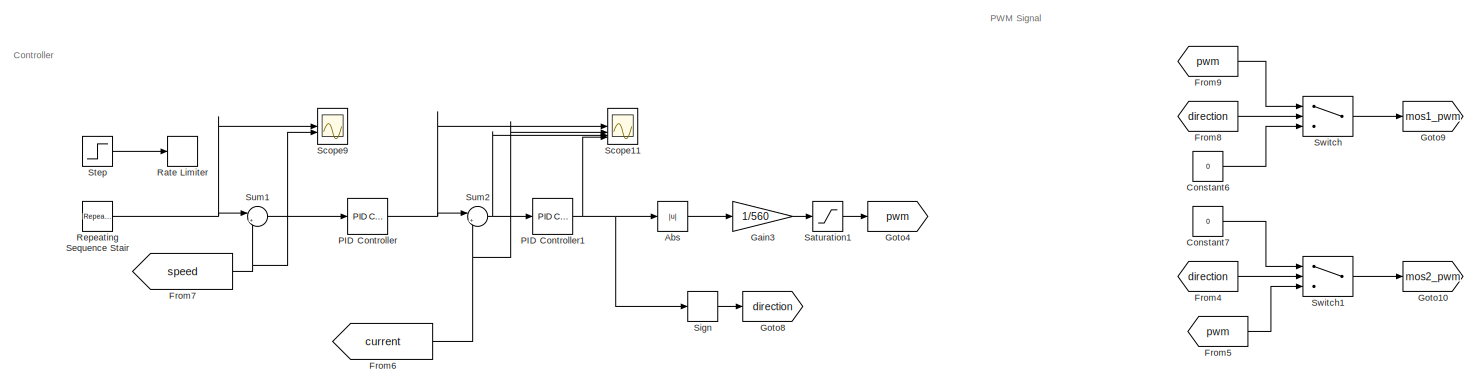
[diagram: root canvas - part 1/7, top center region]
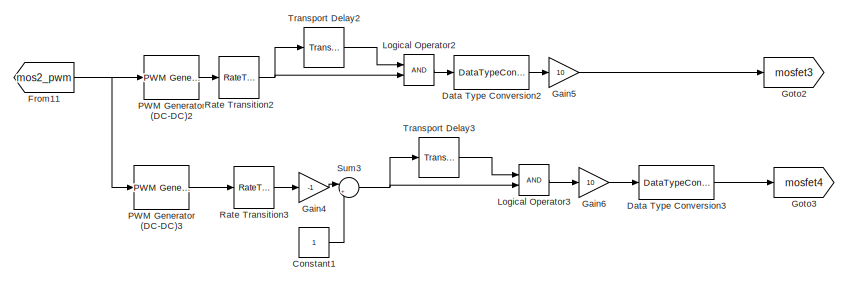
[diagram: root canvas - part 2/7, top right region]
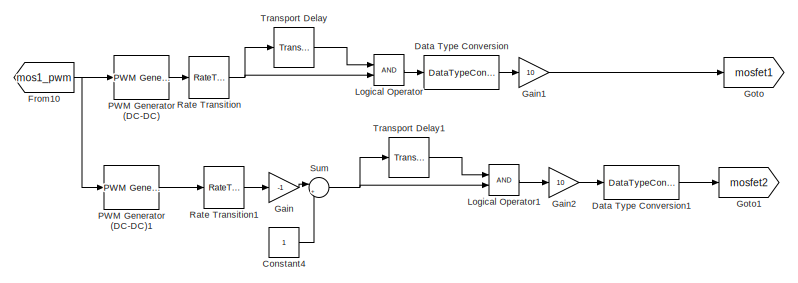
[diagram: root canvas - part 3/7, top right region]
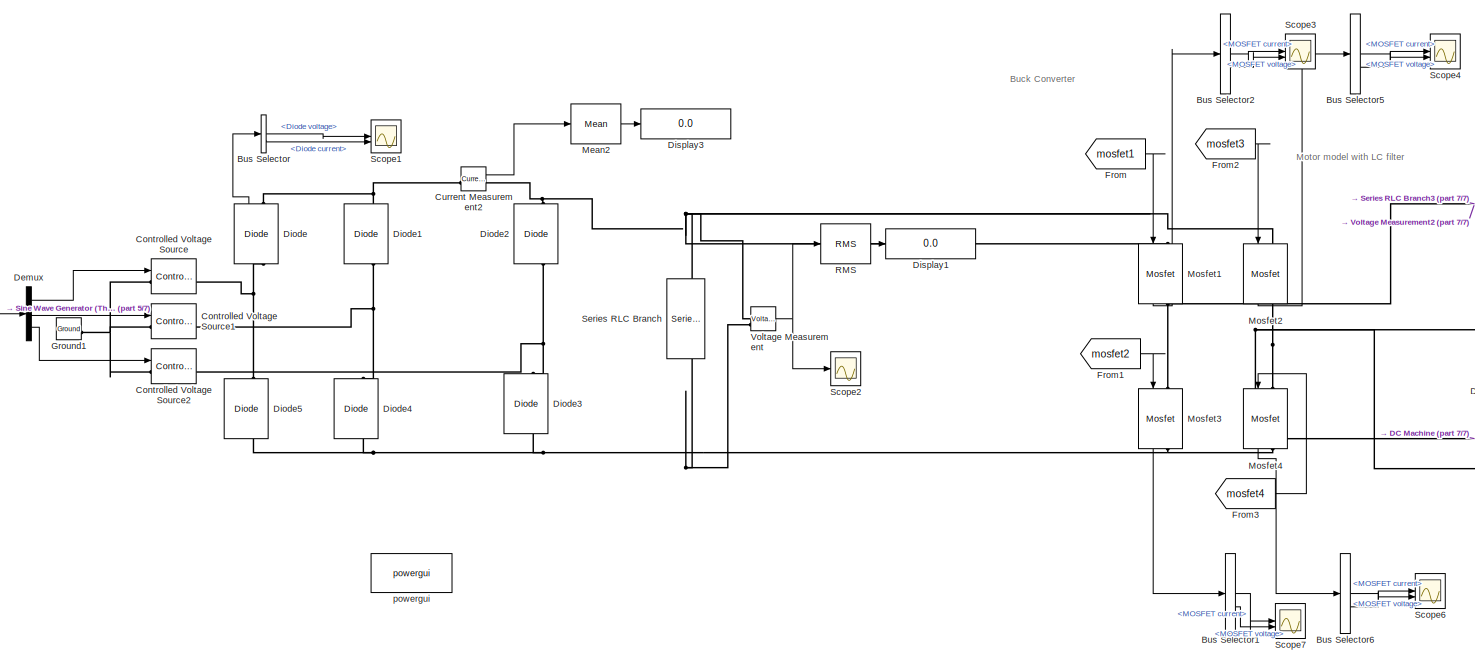
[diagram: root canvas - part 4/7, bottom center region]
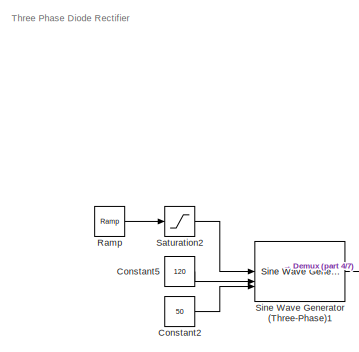
[diagram: root canvas - part 5/7, middle left region]
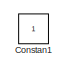
[diagram: root canvas - part 6/7, middle left region]
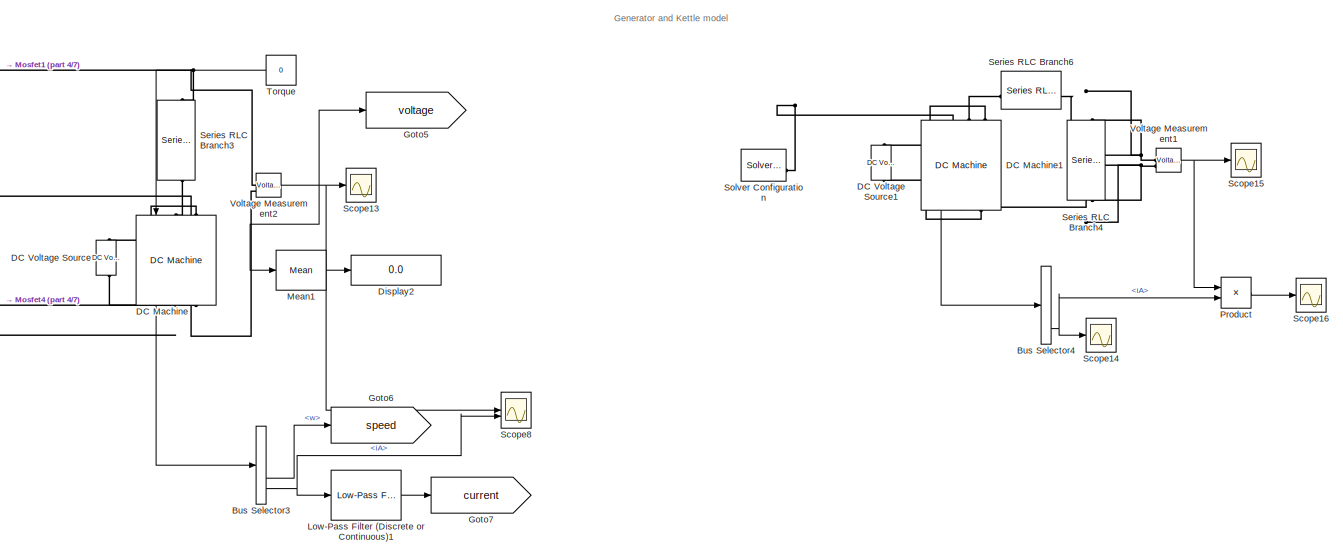
[diagram: root canvas - part 7/7, bottom right region]
MODEL slx_ae579819a69c
KIND model
CONFIG AbsTol = auto
CONFIG EnableMultiTasking = off
CONFIG FixedStep = 1e-6
CONFIG MaxStep = auto
CONFIG MinStep = auto
CONFIG RelTol = 1e-3
CONFIG SampleTimeConstraint = Unconstrained
CONFIG SolverName = VariableStepAuto
CONFIG StartTime = 0
CONFIG StopTime = 2.5*4
BLOCK [Abs] Abs
  SaturateOnIntegerOverflow = off
BLOCK [BusSelector] Bus Selector
  OutputSignals = Diode voltage,Diode current
BLOCK [BusSelector] Bus Selector1
  OutputSignals = MOSFET current,MOSFET voltage
BLOCK [BusSelector] Bus Selector2
  OutputSignals = MOSFET current,MOSFET voltage
BLOCK [BusSelector] Bus Selector3
  OutputSignals = Te,w,iF,iA
BLOCK [BusSelector] Bus Selector4
  Commented = on
  OutputSignals = Te,w,iF,iA
BLOCK [BusSelector] Bus Selector5
  OutputSignals = MOSFET current,MOSFET voltage
BLOCK [BusSelector] Bus Selector6
  OutputSignals = MOSFET current,MOSFET voltage
BLOCK [Constant] Constan1
  IOType = siggen
BLOCK [Constant] Constant1
BLOCK [Constant] Constant2
  Value = 50
BLOCK [Constant] Constant4
BLOCK [Constant] Constant5
  Value = 120
BLOCK [Constant] Constant6
  Value = 0
BLOCK [Constant] Constant7
  Value = 0
BLOCK [Reference] Controlled Voltage Source  REF=spsControlledVoltageSourceLib/Controlled Voltage Source
  LibrarySourceBlock = sps_lib/Sources/Controlled Voltage Source
  NameLocation = left
  SourceBlock = spsControlledVoltageSourceLib/Controlled Voltage Source
  SourceType = Controlled Voltage Source
BLOCK [Reference] Controlled Voltage Source1  REF=spsControlledVoltageSourceLib/Controlled Voltage Source
  LibrarySourceBlock = sps_lib/Sources/Controlled Voltage Source
  NameLocation = left
  SourceBlock = spsControlledVoltageSourceLib/Controlled Voltage Source
  SourceType = Controlled Voltage Source
BLOCK [Reference] Controlled Voltage Source2  REF=spsControlledVoltageSourceLib/Controlled Voltage Source
  LibrarySourceBlock = sps_lib/Sources/Controlled Voltage Source
  NameLocation = left
  SourceBlock = spsControlledVoltageSourceLib/Controlled Voltage Source
  SourceType = Controlled Voltage Source
BLOCK [Reference] Current Measurement2  REF=spsCurrentMeasurementLib/Current Measurement
  LibrarySourceBlock = sps_lib/Sensors and Measurements/Current Measurement
  SourceBlock = spsCurrentMeasurementLib/Current Measurement
  SourceType = Current Measurement
  UserDataPersistent = on
BLOCK [Reference] DC Machine  REF=spsDCMachineLib/DC Machine
  LibrarySourceBlock = sps_lib/Electrical Machines/DC Machine
  NameLocation = left
  SourceBlock = spsDCMachineLib/DC Machine
  SourceType = DC machine
BLOCK [Reference] DC Machine1  REF=spsDCMachineLib/DC Machine
  Commented = on
  LibrarySourceBlock = sps_lib/Electrical Machines/DC Machine
  NameLocation = left
  SourceBlock = spsDCMachineLib/DC Machine
  SourceType = DC machine
BLOCK [Reference] DC Voltage Source  REF=spsDCVoltageSourceLib/DC Voltage Source
  LibrarySourceBlock = sps_lib/Sources/DC Voltage Source
  SourceBlock = spsDCVoltageSourceLib/DC Voltage Source
  SourceType = DC Voltage Source
BLOCK [Reference] DC Voltage Source1  REF=spsDCVoltageSourceLib/DC Voltage Source
  Commented = on
  LibrarySourceBlock = sps_lib/Sources/DC Voltage Source
  SourceBlock = spsDCVoltageSourceLib/DC Voltage Source
  SourceType = DC Voltage Source
BLOCK [DataTypeConversion] Data Type Conversion
  OutDataTypeStr = double
  RndMeth = Floor
  SaturateOnIntegerOverflow = off
BLOCK [DataTypeConversion] Data Type Conversion1
  OutDataTypeStr = double
  RndMeth = Floor
  SaturateOnIntegerOverflow = off
BLOCK [DataTypeConversion] Data Type Conversion2
  OutDataTypeStr = double
  RndMeth = Floor
  SaturateOnIntegerOverflow = off
BLOCK [DataTypeConversion] Data Type Conversion3
  OutDataTypeStr = double
  RndMeth = Floor
  SaturateOnIntegerOverflow = off
BLOCK [Demux] Demux
  Outputs = 3
BLOCK [Reference] Diode  REF=spsDiodeLib/Diode
  LibrarySourceBlock = sps_lib/Power Electronics/Diode
  NameLocation = right
  SourceBlock = spsDiodeLib/Diode
  SourceType = Diode
BLOCK [Reference] Diode1  REF=spsDiodeLib/Diode
  LibrarySourceBlock = sps_lib/Power Electronics/Diode
  NameLocation = right
  SourceBlock = spsDiodeLib/Diode
  SourceType = Diode
BLOCK [Reference] Diode2  REF=spsDiodeLib/Diode
  LibrarySourceBlock = sps_lib/Power Electronics/Diode
  NameLocation = right
  SourceBlock = spsDiodeLib/Diode
  SourceType = Diode
BLOCK [Reference] Diode3  REF=spsDiodeLib/Diode
  LibrarySourceBlock = sps_lib/Power Electronics/Diode
  NameLocation = right
  SourceBlock = spsDiodeLib/Diode
  SourceType = Diode
BLOCK [Reference] Diode4  REF=spsDiodeLib/Diode
  LibrarySourceBlock = sps_lib/Power Electronics/Diode
  NameLocation = right
  SourceBlock = spsDiodeLib/Diode
  SourceType = Diode
BLOCK [Reference] Diode5  REF=spsDiodeLib/Diode
  LibrarySourceBlock = sps_lib/Power Electronics/Diode
  NameLocation = right
  SourceBlock = spsDiodeLib/Diode
  SourceType = Diode
BLOCK [Display] Display1
  Decimation = 1
BLOCK [Display] Display2
  Decimation = 1
BLOCK [Display] Display3
  Decimation = 1
BLOCK [From] From
  GotoTag = mosfet1
BLOCK [From] From1
  GotoTag = mosfet2
BLOCK [From] From10
  GotoTag = mos1_pwm
BLOCK [From] From11
  GotoTag = mos2_pwm
BLOCK [From] From2
  GotoTag = mosfet3
BLOCK [From] From3
  GotoTag = mosfet4
BLOCK [From] From4
  GotoTag = direction
BLOCK [From] From5
  GotoTag = pwm
BLOCK [From] From6
  GotoTag = current
BLOCK [From] From7
  GotoTag = speed
BLOCK [From] From8
  GotoTag = direction
BLOCK [From] From9
  GotoTag = pwm
BLOCK [Gain] Gain
  Gain = -1
BLOCK [Gain] Gain1
  Gain = 10
BLOCK [Gain] Gain2
  Gain = 10
BLOCK [Gain] Gain3
  Gain = 1/560
BLOCK [Gain] Gain4
  Gain = -1
BLOCK [Gain] Gain5
  Gain = 10
BLOCK [Gain] Gain6
  Gain = 10
BLOCK [Goto] Goto
  GotoTag = mosfet1
BLOCK [Goto] Goto1
  GotoTag = mosfet2
BLOCK [Goto] Goto10
  GotoTag = mos2_pwm
BLOCK [Goto] Goto2
  GotoTag = mosfet3
BLOCK [Goto] Goto3
  GotoTag = mosfet4
BLOCK [Goto] Goto4
  GotoTag = pwm
BLOCK [Goto] Goto5
  GotoTag = voltage
BLOCK [Goto] Goto6
  GotoTag = speed
BLOCK [Goto] Goto7
  GotoTag = current
BLOCK [Goto] Goto8
  GotoTag = direction
BLOCK [Goto] Goto9
  GotoTag = mos1_pwm
BLOCK [Reference] Ground1  REF=spsGroundLib/Ground
  LibrarySourceBlock = sps_lib/Utilities/Ground
  SourceBlock = spsGroundLib/Ground
  SourceType = Ground
BLOCK [Logic] Logical Operator
  AllPortsSameDT = off
  OutDataTypeStr = boolean
BLOCK [Logic] Logical Operator1
  AllPortsSameDT = off
  OutDataTypeStr = boolean
BLOCK [Logic] Logical Operator2
  AllPortsSameDT = off
  OutDataTypeStr = boolean
BLOCK [Logic] Logical Operator3
  AllPortsSameDT = off
  OutDataTypeStr = boolean
BLOCK [Reference] Low-Pass Filter (Discrete or Continuous)1  REF=eeGeneralControl/Low-Pass Filter
(Discrete or Continuous)
  LibrarySourceBlock = ee_sl_lib/General Control/Low-Pass Filter\n(Discrete or Continuous)
  SourceBlock = eeGeneralControl/Low-Pass Filter\n(Discrete or Continuous)
  SourceType = Low-Pass Filter (Discrete or Continuous)
BLOCK [Reference] Mean1  REF=spsMeanLib/Mean
  LibrarySourceBlock = sps_lib/Sensors and Measurements/Mean
  SourceBlock = spsMeanLib/Mean
  SourceType = Mean
BLOCK [Reference] Mean2  REF=spsMeanLib/Mean
  LibrarySourceBlock = sps_lib/Sensors and Measurements/Mean
  SourceBlock = spsMeanLib/Mean
  SourceType = Mean
BLOCK [Reference] Mosfet1  REF=spsMosfetLib/Mosfet
  LibrarySourceBlock = sps_lib/Power Electronics/Mosfet
  NameLocation = left
  SourceBlock = spsMosfetLib/Mosfet
  SourceType = Mosfet
BLOCK [Reference] Mosfet2  REF=spsMosfetLib/Mosfet
  LibrarySourceBlock = sps_lib/Power Electronics/Mosfet
  NameLocation = left
  SourceBlock = spsMosfetLib/Mosfet
  SourceType = Mosfet
BLOCK [Reference] Mosfet3  REF=spsMosfetLib/Mosfet
  LibrarySourceBlock = sps_lib/Power Electronics/Mosfet
  NameLocation = left
  SourceBlock = spsMosfetLib/Mosfet
  SourceType = Mosfet
BLOCK [Reference] Mosfet4  REF=spsMosfetLib/Mosfet
  LibrarySourceBlock = sps_lib/Power Electronics/Mosfet
  NameLocation = left
  SourceBlock = spsMosfetLib/Mosfet
  SourceType = Mosfet
BLOCK [Reference] PID Controller  REF=slpidlib/PID Controller
  LibrarySourceBlock = simulink/Continuous/PID Controller
  SourceBlock = slpidlib/PID Controller
  SourceType = PID 1dof
BLOCK [Reference] PID Controller1  REF=slpidlib/PID Controller
  LibrarySourceBlock = simulink/Continuous/PID Controller
  SourceBlock = slpidlib/PID Controller
  SourceType = PID 1dof
BLOCK [Reference] PWM Generator (DC-DC)  REF=spsPWMGeneratorDCDCLib/PWM Generator
(DC-DC)
  LibrarySourceBlock = sps_lib/Power Electronics/Power Electronics Control/PWM Generator\n(DC-DC)
  SourceBlock = spsPWMGeneratorDCDCLib/PWM Generator\n(DC-DC)
  SourceType = PWM Generator (DC-DC)
BLOCK [Reference] PWM Generator (DC-DC)1  REF=spsPWMGeneratorDCDCLib/PWM Generator
(DC-DC)
  LibrarySourceBlock = sps_lib/Power Electronics/Power Electronics Control/PWM Generator\n(DC-DC)
  SourceBlock = spsPWMGeneratorDCDCLib/PWM Generator\n(DC-DC)
  SourceType = PWM Generator (DC-DC)
BLOCK [Reference] PWM Generator (DC-DC)2  REF=spsPWMGeneratorDCDCLib/PWM Generator
(DC-DC)
  LibrarySourceBlock = sps_lib/Power Electronics/Power Electronics Control/PWM Generator\n(DC-DC)
  SourceBlock = spsPWMGeneratorDCDCLib/PWM Generator\n(DC-DC)
  SourceType = PWM Generator (DC-DC)
BLOCK [Reference] PWM Generator (DC-DC)3  REF=spsPWMGeneratorDCDCLib/PWM Generator
(DC-DC)
  LibrarySourceBlock = sps_lib/Power Electronics/Power Electronics Control/PWM Generator\n(DC-DC)
  SourceBlock = spsPWMGeneratorDCDCLib/PWM Generator\n(DC-DC)
  SourceType = PWM Generator (DC-DC)
BLOCK [Product] Product
  Commented = on
BLOCK [Reference] RMS  REF=spsRMSLib/RMS
  LibrarySourceBlock = sps_lib/Sensors and Measurements/RMS
  SourceBlock = spsRMSLib/RMS
  SourceType = RMS
BLOCK [Reference] Ramp  REF=simulink/Sources/Ramp
  SourceBlock = simulink/Sources/Ramp
  SourceType = Ramp
BLOCK [RateLimiter] Rate Limiter
  FallingSlewLimit = -150
  RisingSlewLimit = 150
  SampleTimeMode = inherited
BLOCK [RateTransition] Rate Transition
  OutPortSampleTime = 1e-6
BLOCK [RateTransition] Rate Transition1
  OutPortSampleTime = 1e-6
BLOCK [RateTransition] Rate Transition2
  OutPortSampleTime = 1e-6
BLOCK [RateTransition] Rate Transition3
  OutPortSampleTime = 1e-6
BLOCK [Reference] Repeating Sequence Stair  REF=simulink/Sources/Repeating
Sequence
Stair
  SourceBlock = simulink/Sources/Repeating\nSequence\nStair
  SourceType = Repeating Sequence Stair
BLOCK [Saturate] Saturation1
  LowerLimit = 0
  UpperLimit = 0.32
BLOCK [Saturate] Saturation2
  LowerLimit = 0
  UpperLimit = 230*sqrt(2)
BLOCK [Scope] Scope1
  Floating = off
  NumInputPorts = 2
  ScopeSpecificationString = Simulink.scopes.TimeScopeBlockCfg('CurrentConfiguration', extmgr.ConfigurationSet(extmgr.Configuration('Core','General UI',true,'FigureColor',[1 1 1]),extmgr.Configuration('Core','Source UI',true),extmgr.Configuration('Sources','WiredSimulink',true,'DataLoggingVariableName','ScopeData1'),extmgr.Configuration('Visuals','Time Domain',true,'SerializedDisplays',{struct('MinYLimReal','-632.84794','MaxY...<+2366ch>
BLOCK [Scope] Scope11
  Floating = off
  NumInputPorts = 4
  ScopeSpecificationString = Simulink.scopes.TimeScopeBlockCfg('CurrentConfiguration', extmgr.ConfigurationSet(extmgr.Configuration('Core','General UI',true,'FigureColor',[1 1 1]),extmgr.Configuration('Core','Source UI',true),extmgr.Configuration('Sources','WiredSimulink',true,'DataLoggingVariableName','ScopeData3'),extmgr.Configuration('Visuals','Time Domain',true,'SerializedDisplays',{struct('MinYLimReal','-25.00000','MaxYL...<+4080ch>
BLOCK [Scope] Scope13
  Floating = off
  NumInputPorts = 1
  ScopeSpecificationString = Simulink.scopes.TimeScopeBlockCfg('CurrentConfiguration', extmgr.ConfigurationSet(extmgr.Configuration('Core','General UI',true),extmgr.Configuration('Core','Source UI',true),extmgr.Configuration('Sources','WiredSimulink',true,'DataLoggingVariableName','ScopeData5'),extmgr.Configuration('Visuals','Time Domain',true,'SerializedDisplays',{struct('MinYLimReal','-13.71368','MaxYLimReal','123.25611','Y...<+1991ch>
BLOCK [Scope] Scope14
  Commented = on
  Floating = off
  NumInputPorts = 1
  ScopeSpecificationString = Simulink.scopes.TimeScopeBlockCfg('CurrentConfiguration', extmgr.ConfigurationSet(extmgr.Configuration('Core','General UI',true),extmgr.Configuration('Core','Source UI',true),extmgr.Configuration('Sources','WiredSimulink',true,'DataLoggingVariableName','ScopeData6'),extmgr.Configuration('Visuals','Time Domain',true,'SerializedDisplays',{struct('MinYLimReal','-1.11539','MaxYLimReal','0.12393','YLab...<+1965ch>
BLOCK [Scope] Scope15
  Commented = on
  Floating = off
  NumInputPorts = 1
  ScopeSpecificationString = Simulink.scopes.TimeScopeBlockCfg('CurrentConfiguration', extmgr.ConfigurationSet(extmgr.Configuration('Core','General UI',true),extmgr.Configuration('Core','Source UI',true),extmgr.Configuration('Sources','WiredSimulink',true,'DataLoggingVariableName','ScopeData7'),extmgr.Configuration('Visuals','Time Domain',true,'SerializedDisplays',{struct('MinYLimReal','-11.44021','MaxYLimReal','102.96188','Y...<+1991ch>
BLOCK [Scope] Scope16
  Commented = on
  Floating = off
  NumInputPorts = 1
  ScopeSpecificationString = Simulink.scopes.TimeScopeBlockCfg('CurrentConfiguration', extmgr.ConfigurationSet(extmgr.Configuration('Core','General UI',true),extmgr.Configuration('Core','Source UI',true),extmgr.Configuration('Sources','WiredSimulink',true,'DataLoggingVariableName','ScopeData8'),extmgr.Configuration('Visuals','Time Domain',true,'SerializedDisplays',{struct('MinYLimReal','-2132.90842','MaxYLimReal','236.98982',...<+1988ch>
BLOCK [Scope] Scope2
  Floating = off
  NumInputPorts = 1
  ScopeSpecificationString = Simulink.scopes.TimeScopeBlockCfg('CurrentConfiguration', extmgr.ConfigurationSet(extmgr.Configuration('Core','General UI',true,'FigureColor',[1 1 1]),extmgr.Configuration('Core','Source UI',true),extmgr.Configuration('Sources','WiredSimulink',true,'DataLoggingVariableName','ScopeData1'),extmgr.Configuration('Visuals','Time Domain',true,'SerializedDisplays',{struct('MinYLimReal','531.2603','MaxYLi...<+1771ch>
BLOCK [Scope] Scope3
  Floating = off
  NumInputPorts = 2
  ScopeSpecificationString = Simulink.scopes.TimeScopeBlockCfg('CurrentConfiguration', extmgr.ConfigurationSet(extmgr.Configuration('Core','General UI',true,'FigureColor',[1 1 1]),extmgr.Configuration('Core','Source UI',true),extmgr.Configuration('Sources','WiredSimulink',true,'DataLoggingVariableName','ScopeData1'),extmgr.Configuration('Visuals','Time Domain',true,'SerializedDisplays',{struct('MinYLimReal','-2.14586','MaxYLi...<+2451ch>
BLOCK [Scope] Scope4
  Floating = off
  NumInputPorts = 2
  ScopeSpecificationString = Simulink.scopes.TimeScopeBlockCfg('CurrentConfiguration', extmgr.ConfigurationSet(extmgr.Configuration('Core','General UI',true),extmgr.Configuration('Core','Source UI',true),extmgr.Configuration('Sources','WiredSimulink',true,'DataLoggingVariableName','ScopeData2'),extmgr.Configuration('Visuals','Time Domain',true,'SerializedDisplays',{struct('MinYLimReal','-1.00000','MaxYLimReal','1.00000','YLab...<+2418ch>
BLOCK [Scope] Scope6
  Floating = off
  NumInputPorts = 2
  ScopeSpecificationString = Simulink.scopes.TimeScopeBlockCfg('CurrentConfiguration', extmgr.ConfigurationSet(extmgr.Configuration('Core','General UI',true),extmgr.Configuration('Core','Source UI',true),extmgr.Configuration('Sources','WiredSimulink',true,'DataLoggingVariableName','ScopeData3'),extmgr.Configuration('Visuals','Time Domain',true,'SerializedDisplays',{struct('MinYLimReal','-2.1466','MaxYLimReal','19.31939','YLab...<+2420ch>
BLOCK [Scope] Scope7
  Floating = off
  NumInputPorts = 2
  ScopeSpecificationString = Simulink.scopes.TimeScopeBlockCfg('CurrentConfiguration', extmgr.ConfigurationSet(extmgr.Configuration('Core','General UI',true),extmgr.Configuration('Core','Source UI',true),extmgr.Configuration('Sources','WiredSimulink',true,'DataLoggingVariableName','ScopeData4'),extmgr.Configuration('Visuals','Time Domain',true,'SerializedDisplays',{struct('MinYLimReal','-19.3142','MaxYLimReal','2.15135','YLab...<+2420ch>
BLOCK [Scope] Scope8
  Floating = off
  NumInputPorts = 2
  ScopeSpecificationString = Simulink.scopes.TimeScopeBlockCfg('CurrentConfiguration', extmgr.ConfigurationSet(extmgr.Configuration('Core','General UI',true,'FigureColor',[1 1 1]),extmgr.Configuration('Core','Source UI',true),extmgr.Configuration('Sources','WiredSimulink',true,'DataLoggingVariableName','ScopeData5'),extmgr.Configuration('Visuals','Time Domain',true,'SerializedDisplays',{struct('MinYLimReal','-703.57856','MaxY...<+2451ch>
BLOCK [Scope] Scope9
  Floating = off
  NumInputPorts = 2
  ScopeSpecificationString = Simulink.scopes.TimeScopeBlockCfg('CurrentConfiguration', extmgr.ConfigurationSet(extmgr.Configuration('Core','General UI',true,'FigureColor',[1 1 1]),extmgr.Configuration('Core','Source UI',true),extmgr.Configuration('Sources','WiredSimulink',true,'DataLoggingVariableName','ScopeData1'),extmgr.Configuration('Visuals','Time Domain',true,'SerializedDisplays',{struct('MinYLimReal','-37.53998','MaxYL...<+1808ch>
BLOCK [Reference] Series RLC Branch  REF=spsSeriesRLCBranchLib/Series RLC Branch
  LibrarySourceBlock = sps_lib/Passives/Series RLC Branch
  NameLocation = left
  SourceBlock = spsSeriesRLCBranchLib/Series RLC Branch
  SourceType = Series RLC Branch
BLOCK [Reference] Series RLC Branch3  REF=spsSeriesRLCBranchLib/Series RLC Branch
  LibrarySourceBlock = sps_lib/Passives/Series RLC Branch
  NameLocation = left
  SourceBlock = spsSeriesRLCBranchLib/Series RLC Branch
  SourceType = Series RLC Branch
BLOCK [Reference] Series RLC Branch4  REF=spsSeriesRLCBranchLib/Series RLC Branch
  Commented = on
  LibrarySourceBlock = sps_lib/Passives/Series RLC Branch
  NameLocation = left
  SourceBlock = spsSeriesRLCBranchLib/Series RLC Branch
  SourceType = Series RLC Branch
BLOCK [Reference] Series RLC Branch6  REF=spsSeriesRLCBranchLib/Series RLC Branch
  Commented = on
  LibrarySourceBlock = sps_lib/Passives/Series RLC Branch
  NameLocation = top
  SourceBlock = spsSeriesRLCBranchLib/Series RLC Branch
  SourceType = Series RLC Branch
BLOCK [Signum] Sign
BLOCK [Reference] Sine Wave Generator (Three-Phase)1  REF=eeSinGeneratorThreePhase/Sine Wave Generator
(Three-Phase)
  LibrarySourceBlock = ee_sl_lib/General Control/Sine Wave Generator\n(Three-Phase)
  SourceBlock = eeSinGeneratorThreePhase/Sine Wave Generator\n(Three-Phase)
  SourceType = Sine Wave Generator (Three-Phase)
BLOCK [Reference] Solver Configuration  REF=nesl_utility/Solver
Configuration
  Commented = on
  SourceBlock = nesl_utility/Solver\nConfiguration
  SourceType = Solver\nConfiguration
BLOCK [Step] Step
  After = 20
  SampleTime = 0
  Time = 0.2
BLOCK [Sum] Sum
  Inputs = |++
BLOCK [Sum] Sum1
  Inputs = |+-
BLOCK [Sum] Sum2
  Inputs = |+-
BLOCK [Sum] Sum3
  Inputs = |++
BLOCK [Switch] Switch
  Criteria = u2 > Threshold
  InputSameDT = off
  SaturateOnIntegerOverflow = off
BLOCK [Switch] Switch1
  Criteria = u2 > Threshold
  InputSameDT = off
  SaturateOnIntegerOverflow = off
BLOCK [Constant] Torque
  NameLocation = top
  Value = 0
BLOCK [TransportDelay] Transport Delay
  BufferSize = 16384
  DelayTime = 1/1000000
BLOCK [TransportDelay] Transport Delay1
  BufferSize = 16384
  DelayTime = 1/1000000
BLOCK [TransportDelay] Transport Delay2
  BufferSize = 16384
  DelayTime = 1/1000000
BLOCK [TransportDelay] Transport Delay3
  BufferSize = 16384
  DelayTime = 1/1000000
BLOCK [Reference] Voltage Measurement  REF=spsVoltageMeasurementLib/Voltage Measurement
  LibrarySourceBlock = sps_lib/Sensors and Measurements/Voltage Measurement
  SourceBlock = spsVoltageMeasurementLib/Voltage Measurement
  SourceType = Voltage Measurement
  UserDataPersistent = on
BLOCK [Reference] Voltage Measurement1  REF=spsVoltageMeasurementLib/Voltage Measurement
  Commented = on
  LibrarySourceBlock = sps_lib/Sensors and Measurements/Voltage Measurement
  SourceBlock = spsVoltageMeasurementLib/Voltage Measurement
  SourceType = Voltage Measurement
  UserDataPersistent = on
BLOCK [Reference] Voltage Measurement2  REF=spsVoltageMeasurementLib/Voltage Measurement
  LibrarySourceBlock = sps_lib/Sensors and Measurements/Voltage Measurement
  SourceBlock = spsVoltageMeasurementLib/Voltage Measurement
  SourceType = Voltage Measurement
  UserDataPersistent = on
BLOCK [Reference] powergui  REF=sps_lib/powergui
  LibrarySourceBlock = sps_lib/powergui
  Priority = 1
  SourceBlock = sps_lib/powergui
  SourceType = PSB option menu block
ANNOTATION (root): Buck Converter
ANNOTATION (root): Controller
ANNOTATION (root): Generator and Kettle model
ANNOTATION (root): Motor model with LC filter
ANNOTATION (root): PWM Signal
ANNOTATION (root): Three Phase Diode Rectifier
LINE Abs:1 -> Gain3:1
LINE Bus Selector1:1 -> Scope7:1
LINE Bus Selector1:2 -> Scope7:2
LINE Bus Selector2:1 -> Scope3:1
LINE Bus Selector2:2 -> Scope3:2
LINE Bus Selector3:2 -> Goto6:1
NET Bus Selector3:4 -> Low-Pass Filter (Discrete or Continuous)1:1, Scope8:2
NET Bus Selector4:4 -> Product:2, Scope14:1
LINE Bus Selector5:1 -> Scope4:1
LINE Bus Selector5:2 -> Scope4:2
LINE Bus Selector6:1 -> Scope6:1
LINE Bus Selector6:2 -> Scope6:2
LINE Bus Selector:1 -> Scope1:1
LINE Bus Selector:2 -> Scope1:2
LINE Constant1:1 -> Sum3:2
LINE Constant2:1 -> Sine Wave Generator (Three-Phase)1:3
LINE Constant4:1 -> Sum:2
LINE Constant5:1 -> Sine Wave Generator (Three-Phase)1:2
LINE Constant6:1 -> Switch:3
LINE Constant7:1 -> Switch1:1
LINE Current Measurement2:1 -> Mean2:1
LINE DC Machine1:1 -> Bus Selector4:1
LINE DC Machine:1 -> Bus Selector3:1
LINE Data Type Conversion1:1 -> Goto1:1
LINE Data Type Conversion2:1 -> Gain5:1
LINE Data Type Conversion3:1 -> Goto3:1
LINE Data Type Conversion:1 -> Gain1:1
LINE Demux:1 -> Controlled Voltage Source:1
LINE Demux:2 -> Controlled Voltage Source1:1
LINE Demux:3 -> Controlled Voltage Source2:1
LINE Diode:1 -> Bus Selector:1
NET From10:1 -> PWM Generator (DC-DC)1:1, PWM Generator (DC-DC):1
NET From11:1 -> PWM Generator (DC-DC)2:1, PWM Generator (DC-DC)3:1
LINE From1:1 -> Mosfet3:1
LINE From2:1 -> Mosfet2:1
LINE From3:1 -> Mosfet4:1
LINE From4:1 -> Switch1:2
LINE From5:1 -> Switch1:3
NET From6:1 -> Scope11:2, Sum2:2
NET From7:1 -> Scope9:2, Sum1:2
LINE From8:1 -> Switch:2
LINE From9:1 -> Switch:1
LINE From:1 -> Mosfet1:1
LINE Gain1:1 -> Goto:1
LINE Gain2:1 -> Data Type Conversion1:1
LINE Gain3:1 -> Saturation1:1
LINE Gain4:1 -> Sum3:1
LINE Gain5:1 -> Goto2:1
LINE Gain6:1 -> Data Type Conversion3:1
LINE Gain:1 -> Sum:1
LINE Logical Operator1:1 -> Gain2:1
LINE Logical Operator2:1 -> Data Type Conversion2:1
LINE Logical Operator3:1 -> Gain6:1
LINE Logical Operator:1 -> Data Type Conversion:1
LINE Low-Pass Filter (Discrete or Continuous)1:1 -> Goto7:1
LINE Mean1:1 -> Display2:1
LINE Mean2:1 -> Display3:1
LINE Mosfet1:1 -> Bus Selector2:1
LINE Mosfet2:1 -> Bus Selector5:1
LINE Mosfet3:1 -> Bus Selector1:1
LINE Mosfet4:1 -> Bus Selector6:1
NET PID Controller1:1 -> Abs:1, Scope11:4, Sign:1
NET PID Controller:1 -> Scope11:1, Sum2:1
LINE PWM Generator (DC-DC)1:1 -> Rate Transition1:1
LINE PWM Generator (DC-DC)2:1 -> Rate Transition2:1
LINE PWM Generator (DC-DC)3:1 -> Rate Transition3:1
LINE PWM Generator (DC-DC):1 -> Rate Transition:1
LINE Product:1 -> Scope16:1
LINE RMS:1 -> Display1:1
LINE Ramp:1 -> Saturation2:1
LINE Rate Transition1:1 -> Gain:1
NET Rate Transition2:1 -> Logical Operator2:2, Transport Delay2:1
LINE Rate Transition3:1 -> Gain4:1
NET Rate Transition:1 -> Logical Operator:2, Transport Delay:1
NET Repeating Sequence Stair:1 -> Scope9:1, Sum1:1
LINE Saturation1:1 -> Goto4:1
LINE Saturation2:1 -> Sine Wave Generator (Three-Phase)1:1
LINE Sign:1 -> Goto8:1
LINE Sine Wave Generator (Three-Phase)1:1 -> Demux:1
LINE Step:1 -> Rate Limiter:1
LINE Sum1:1 -> PID Controller:1
NET Sum2:1 -> PID Controller1:1, Scope11:3
NET Sum3:1 -> Logical Operator3:2, Transport Delay3:1
NET Sum:1 -> Logical Operator1:2, Transport Delay1:1
LINE Switch1:1 -> Goto10:1
LINE Switch:1 -> Goto9:1
LINE Torque:1 -> DC Machine:1
LINE Transport Delay1:1 -> Logical Operator1:1
LINE Transport Delay2:1 -> Logical Operator2:1
LINE Transport Delay3:1 -> Logical Operator3:1
LINE Transport Delay:1 -> Logical Operator:1
NET Voltage Measurement1:1 -> Product:1, Scope15:1
NET Voltage Measurement2:1 -> Goto5:1, Mean1:1, Scope13:1, Scope8:1
NET Voltage Measurement:1 -> RMS:1, Scope2:1
PNET net1: Controlled Voltage Source1:LConn1 -- Controlled Voltage Source2:LConn1 -- Controlled Voltage Source:LConn1 -- Ground1:LConn1
PNET net2: Controlled Voltage Source1:RConn1 -- Diode1:LConn1 -- Diode4:RConn1
PNET net3: Controlled Voltage Source2:RConn1 -- Diode2:LConn1 -- Diode3:RConn1
PNET net4: Controlled Voltage Source:RConn1 -- Diode5:RConn1 -- Diode:LConn1
PNET net5: Current Measurement2:LConn1 -- Diode1:RConn1 -- Diode:RConn1
PNET net6: Current Measurement2:RConn1 -- Diode2:RConn1 -- Mosfet1:LConn1 -- Mosfet2:LConn1 -- Series RLC Branch:LConn1 -- Voltage Measurement:LConn1
PLINE DC Machine1:LConn1 -- Solver Configuration:RConn1
PLINE DC Machine1:LConn2 -- Series RLC Branch6:RConn1
PLINE DC Machine1:LConn3 -- DC Voltage Source1:RConn1
PNET net7: DC Machine1:RConn1 -- Series RLC Branch4:RConn1 -- Voltage Measurement1:LConn2
PLINE DC Machine1:RConn2 -- DC Voltage Source1:LConn1
PLINE DC Machine:LConn1 -- Series RLC Branch3:RConn1
PLINE DC Machine:LConn2 -- DC Voltage Source:RConn1
PNET net8: DC Machine:RConn1 -- Mosfet2:RConn1 -- Mosfet4:LConn1 -- Voltage Measurement2:LConn2
PLINE DC Machine:RConn2 -- DC Voltage Source:LConn1
PNET net9: Diode3:LConn1 -- Diode4:LConn1 -- Diode5:LConn1 -- Mosfet3:RConn1 -- Mosfet4:RConn1 -- Series RLC Branch:RConn1 -- Voltage Measurement:LConn2
PNET net10: Mosfet1:RConn1 -- Mosfet3:LConn1 -- Series RLC Branch3:LConn1 -- Voltage Measurement2:LConn1
PNET net11: Series RLC Branch4:LConn1 -- Series RLC Branch6:LConn1 -- Voltage Measurement1:LConn1
note: NET lines group one-source signal fan-out (src -> all destinations, sorted); 1:1 wires keep LINE; PNET lines group multi-terminal physical nets as a canonical sorted terminal list (undirected conserving connections); 2-terminal nets keep the pairwise PLINE form
